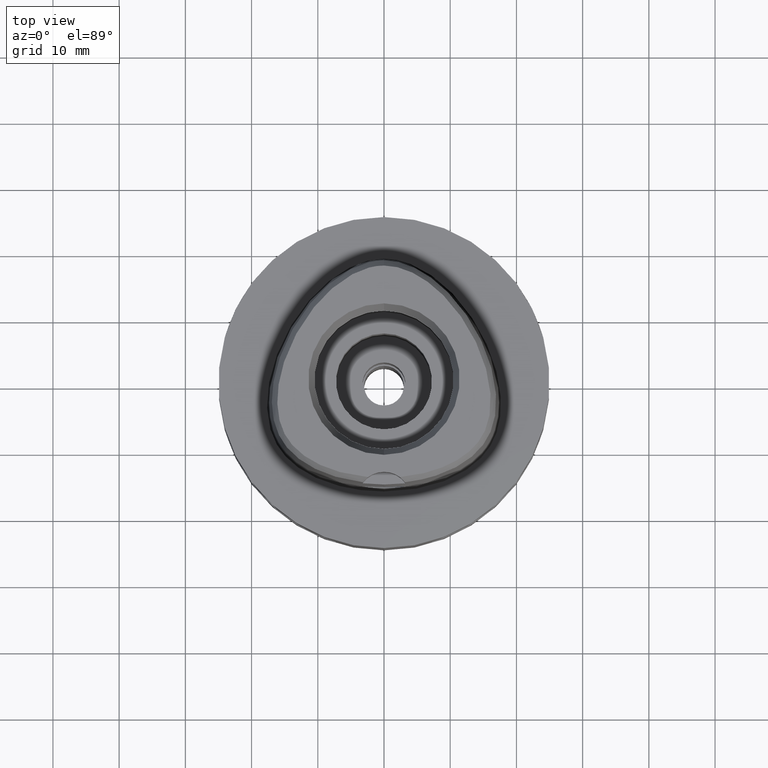
[diagram: clean part render]
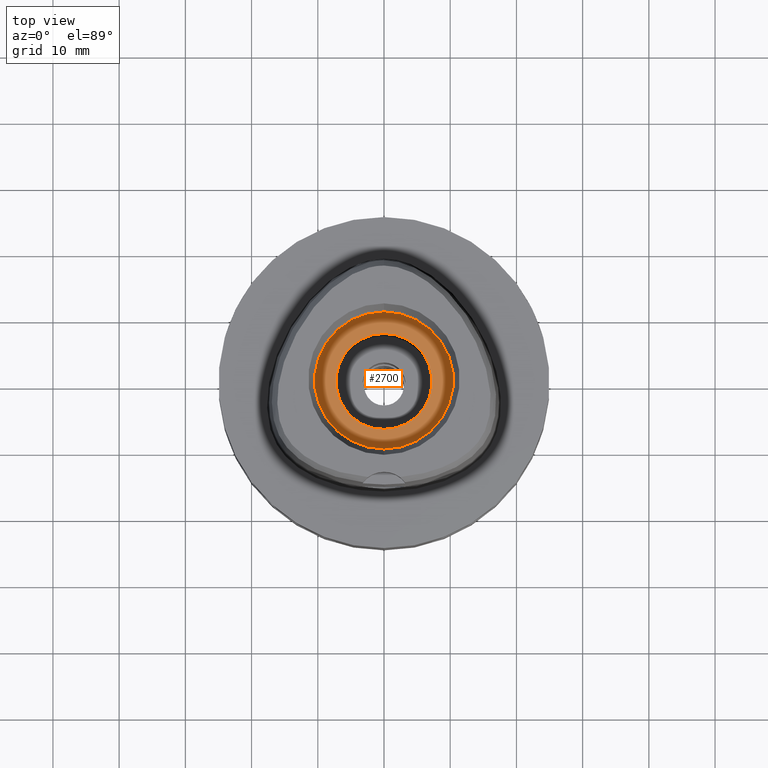
[diagram: same view with one face highlighted and labeled with its STEP entity id]
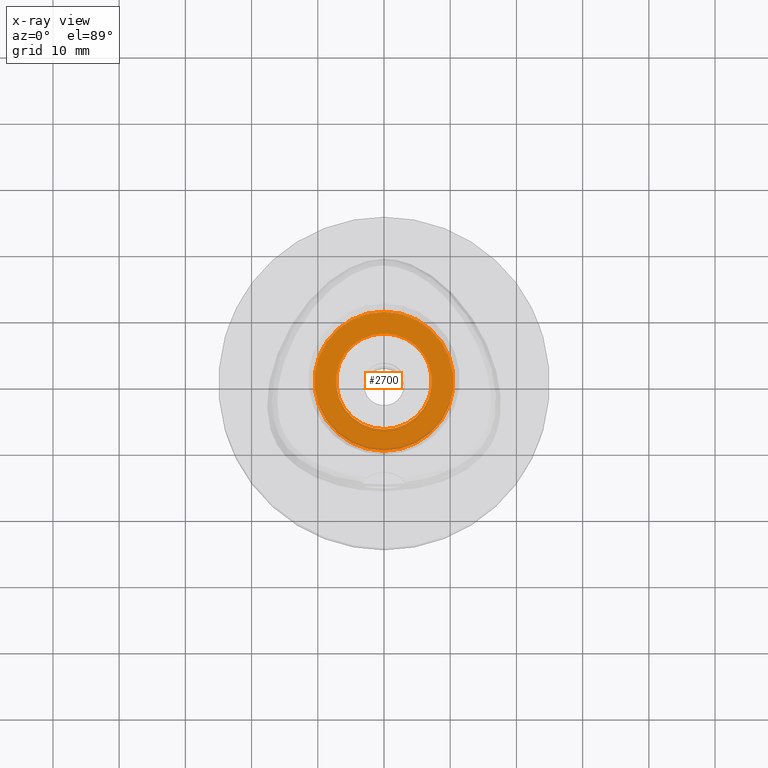
[diagram: x-ray of the same camera — body ghosted, the highlighted face saturated]
A machine part, top view. The second image highlights one B-rep face of the part: STEP entity #2700.
The next image is the same camera in x-ray: the body ghosted, the highlighted face saturated — about 3% of this face is hidden behind the body in this view.
In plain terms, the highlighted planar face has unit normal (0, 0, -1).
Its self-contained STEP definition (entity closure, byte-faithful):
#812=CARTESIAN_POINT('',(0.E0,1.610410540879E-14,1.E1));
#813=DIRECTION('',(0.E0,0.E0,-1.E0));
#814=DIRECTION('',(0.E0,1.E0,0.E0));
#815=AXIS2_PLACEMENT_3D('',#812,#813,#814);
#820=CARTESIAN_POINT('',(0.E0,1.610410540879E-14,1.E1));
#821=DIRECTION('',(0.E0,0.E0,-1.E0));
#822=DIRECTION('',(0.E0,-1.E0,0.E0));
#823=AXIS2_PLACEMENT_3D('',#820,#821,#822);
#828=CARTESIAN_POINT('',(0.E0,1.610410540879E-14,1.E1));
#829=DIRECTION('',(0.E0,0.E0,1.E0));
#830=DIRECTION('',(0.E0,1.E0,0.E0));
#831=AXIS2_PLACEMENT_3D('',#828,#829,#830);
#836=CARTESIAN_POINT('',(0.E0,1.610410540879E-14,1.E1));
#837=DIRECTION('',(0.E0,0.E0,1.E0));
#838=DIRECTION('',(0.E0,-1.E0,0.E0));
#839=AXIS2_PLACEMENT_3D('',#836,#837,#838);
#1623=CARTESIAN_POINT('',(0.E0,7.25E0,1.E1));
#1624=VERTEX_POINT('',#1623);
#1625=CARTESIAN_POINT('',(0.E0,-7.25E0,1.E1));
#1626=VERTEX_POINT('',#1625);
#1627=CARTESIAN_POINT('',(0.E0,1.05E1,1.E1));
#1628=CARTESIAN_POINT('',(0.E0,-1.05E1,1.E1));
#1629=VERTEX_POINT('',#1627);
#1630=VERTEX_POINT('',#1628);
#2685=CARTESIAN_POINT('',(0.E0,1.347111479062E-14,1.E1));
#2686=DIRECTION('',(0.E0,0.E0,-1.E0));
#2687=DIRECTION('',(0.E0,-1.E0,0.E0));
#2688=AXIS2_PLACEMENT_3D('',#2685,#2686,#2687);
#2689=PLANE('',#2688);
#2691=ORIENTED_EDGE('',*,*,#2690,.T.);
#2693=ORIENTED_EDGE('',*,*,#2692,.T.);
#2694=EDGE_LOOP('',(#2691,#2693));
#2695=FACE_OUTER_BOUND('',#2694,.F.);
#2696=ORIENTED_EDGE('',*,*,#2667,.T.);
#2697=ORIENTED_EDGE('',*,*,#2680,.T.);
#2698=EDGE_LOOP('',(#2696,#2697));
#2699=FACE_BOUND('',#2698,.F.);
#816=CIRCLE('',#815,1.05E1);
#824=CIRCLE('',#823,1.05E1);
#832=CIRCLE('',#831,7.25E0);
#840=CIRCLE('',#839,7.25E0);
#2667=EDGE_CURVE('',#1624,#1626,#832,.T.);
#2680=EDGE_CURVE('',#1626,#1624,#840,.T.);
#2690=EDGE_CURVE('',#1629,#1630,#816,.T.);
#2692=EDGE_CURVE('',#1630,#1629,#824,.T.);
#2700=ADVANCED_FACE('',(#2695,#2699),#2689,.F.);